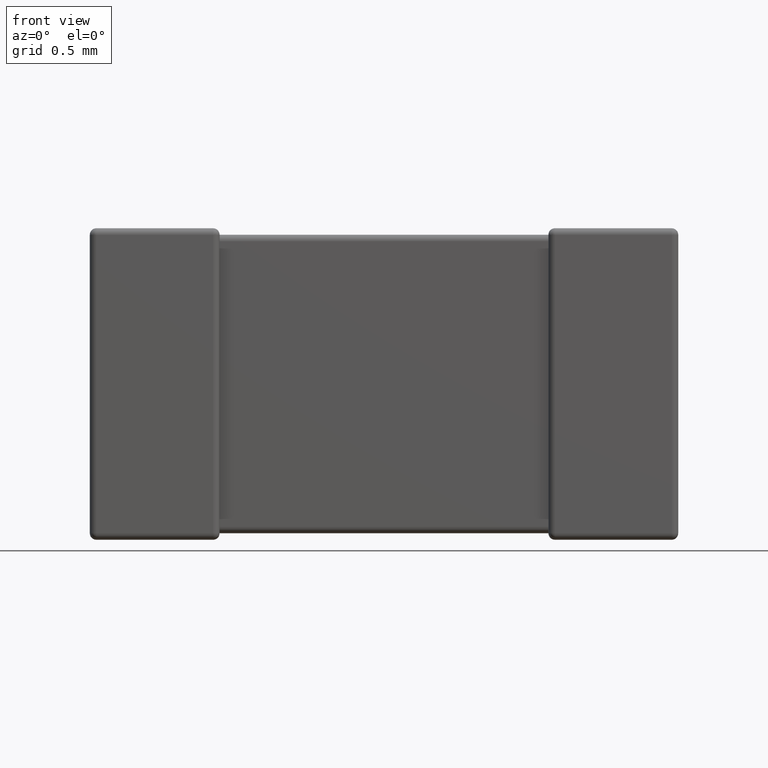
[diagram: clean part render]
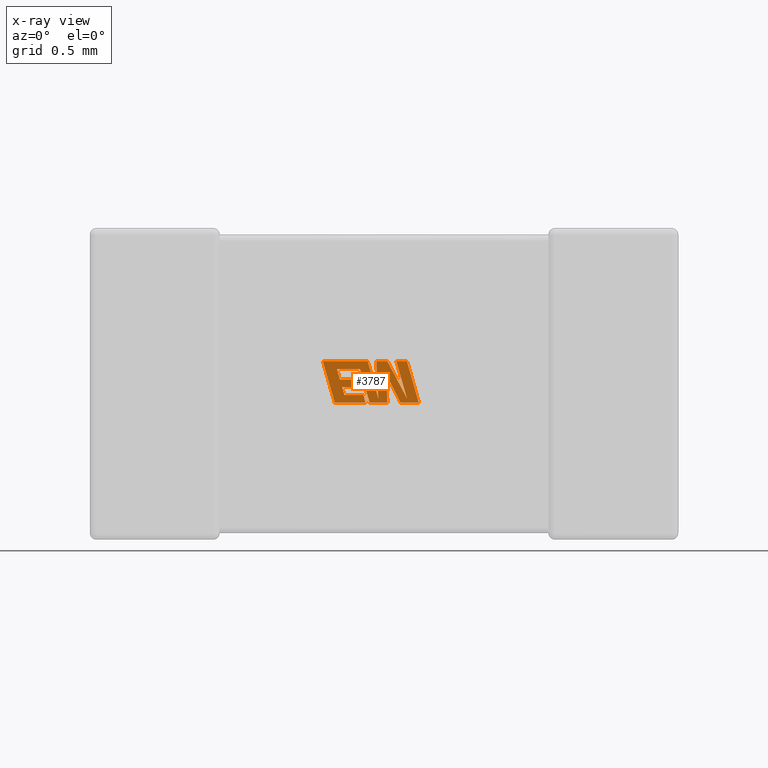
[diagram: x-ray — body ghosted, one internal face saturated and labeled with its STEP entity id]
A machine part, front view, then the same camera in x-ray: the body is ghosted and one INTERNAL B-rep face — a face not visible from any outside direction — is saturated and labeled: STEP entity #3787.
In plain terms, the highlighted planar face has unit normal (0, -1, 0).
Its self-contained STEP definition (entity closure, byte-faithful):
#6 = ORIENTED_EDGE ( 'NONE', *, *, #3652, .F. ) ;
#14 = VECTOR ( 'NONE', #3477, 1000.000000000000000 ) ;
#36 = CARTESIAN_POINT ( 'NONE',  ( 1.415592680271959600, 1.712560000000000100, -1.009387468605939600 ) ) ;
#63 = VECTOR ( 'NONE', #754, 1000.000000000000000 ) ;
#86 = AXIS2_PLACEMENT_3D ( 'NONE', #2228, #2212, #1523 ) ;
#127 = LINE ( 'NONE', #194, #1385 ) ;
#128 = LINE ( 'NONE', #1178, #3002 ) ;
#167 = ORIENTED_EDGE ( 'NONE', *, *, #3449, .F. ) ;
#194 = CARTESIAN_POINT ( 'NONE',  ( 1.795811030974151700, 1.712560000000000100, -1.009387468605939600 ) ) ;
#205 = EDGE_CURVE ( 'NONE', #865, #1140, #242, .T. ) ;
#225 = VERTEX_POINT ( 'NONE', #528 ) ;
#231 = CARTESIAN_POINT ( 'NONE',  ( 1.346355536600579900, 1.712560000000000100, -0.7687799999999998000 ) ) ;
#242 = LINE ( 'NONE', #3790, #1818 ) ;
#277 = EDGE_CURVE ( 'NONE', #957, #2814, #2888, .T. ) ;
#301 = EDGE_CURVE ( 'NONE', #2156, #2018, #2404, .T. ) ;
#332 = DIRECTION ( 'NONE',  ( 0.05375259206908434400, 0.0000000000000000000, -0.9985542843760946100 ) ) ;
#400 = VECTOR ( 'NONE', #4208, 1000.000000000000000 ) ;
#401 = ORIENTED_EDGE ( 'NONE', *, *, #3007, .F. ) ;
#422 = ORIENTED_EDGE ( 'NONE', *, *, #301, .F. ) ;
#445 = ORIENTED_EDGE ( 'NONE', *, *, #2056, .F. ) ;
#446 = EDGE_CURVE ( 'NONE', #2018, #3948, #2467, .T. ) ;
#490 = ORIENTED_EDGE ( 'NONE', *, *, #4024, .F. ) ;
#524 = VERTEX_POINT ( 'NONE', #2975 ) ;
#528 = CARTESIAN_POINT ( 'NONE',  ( 1.795811030974151700, 1.712560000000000100, -1.009387468605939600 ) ) ;
#532 = CARTESIAN_POINT ( 'NONE',  ( 1.832830620914688700, 1.712560000000000100, -0.9840180498207706800 ) ) ;
#536 = CARTESIAN_POINT ( 'NONE',  ( 1.580337707463670000, 1.712560000000000100, -0.9635890723964083400 ) ) ;
#547 = CARTESIAN_POINT ( 'NONE',  ( 1.548258857652406600, 1.712560000000000100, -0.8743560540090878900 ) ) ;
#556 = LINE ( 'NONE', #2680, #1256 ) ;
#562 = DIRECTION ( 'NONE',  ( 0.2740217765953990600, 0.0000000000000000000, -0.9617234872620618000 ) ) ;
#593 = EDGE_CURVE ( 'NONE', #1004, #957, #911, .T. ) ;
#632 = VECTOR ( 'NONE', #2589, 1000.000000000000000 ) ;
#694 = LINE ( 'NONE', #4317, #2505 ) ;
#714 = CARTESIAN_POINT ( 'NONE',  ( 1.832830620914688700, 1.712560000000000100, -0.9840180498207706800 ) ) ;
#754 = DIRECTION ( 'NONE',  ( -0.2765379750249969400, 0.0000000000000000000, 0.9610029908221275900 ) ) ;
#759 = CARTESIAN_POINT ( 'NONE',  ( 1.561342650527708600, 1.712560000000000100, -0.8145557168552942700 ) ) ;
#765 = EDGE_CURVE ( 'NONE', #4582, #865, #973, .T. ) ;
#804 = VECTOR ( 'NONE', #2240, 1000.000000000000000 ) ;
#821 = CARTESIAN_POINT ( 'NONE',  ( 1.445001950557935200, 1.712560000000000100, -0.8743560540090878900 ) ) ;
#830 = ORIENTED_EDGE ( 'NONE', *, *, #4404, .F. ) ;
#865 = VERTEX_POINT ( 'NONE', #1045 ) ;
#911 = LINE ( 'NONE', #714, #4644 ) ;
#920 = DIRECTION ( 'NONE',  ( 0.2746459304917039400, 0.0000000000000000000, -0.9615454294334439000 ) ) ;
#923 = LINE ( 'NONE', #2254, #804 ) ;
#955 = CARTESIAN_POINT ( 'NONE',  ( 1.470714486032121500, 1.712560000000000100, -0.9635890723964083400 ) ) ;
#957 = VERTEX_POINT ( 'NONE', #4344 ) ;
#973 = LINE ( 'NONE', #759, #632 ) ;
#1004 = VERTEX_POINT ( 'NONE', #532 ) ;
#1045 = CARTESIAN_POINT ( 'NONE',  ( 1.427963170861977800, 1.712560000000000100, -0.8145557168552942700 ) ) ;
#1047 = FACE_OUTER_BOUND ( 'NONE', #4485, .T. ) ;
#1059 = DIRECTION ( 'NONE',  ( -0.2760118818968593800, 0.0000000000000000000, 0.9611542233438680200 ) ) ;
#1106 = CARTESIAN_POINT ( 'NONE',  ( 1.457692146891389900, 1.712560000000000100, -0.9188361212786329000 ) ) ;
#1117 = DIRECTION ( 'NONE',  ( 0.2793947940878429000, 0.0000000000000000000, -0.9601763114327556100 ) ) ;
#1140 = VERTEX_POINT ( 'NONE', #821 ) ;
#1159 = VECTOR ( 'NONE', #3590, 1000.000000000000000 ) ;
#1166 = ORIENTED_EDGE ( 'NONE', *, *, #446, .F. ) ;
#1178 = CARTESIAN_POINT ( 'NONE',  ( 1.719205590769775200, 1.712560000000000100, -0.7687799999999998000 ) ) ;
#1188 = VERTEX_POINT ( 'NONE', #3719 ) ;
#1227 = DIRECTION ( 'NONE',  ( 1.000000000000000000, 0.0000000000000000000, -2.459231407381525800E-015 ) ) ;
#1250 = CARTESIAN_POINT ( 'NONE',  ( 1.832163408931786400, 1.712560000000000100, -0.7687799999999998000 ) ) ;
#1256 = VECTOR ( 'NONE', #2655, 1000.000000000000000 ) ;
#1346 = CARTESIAN_POINT ( 'NONE',  ( 1.719205590769775200, 1.712560000000000100, -0.7687799999999998000 ) ) ;
#1365 = ORIENTED_EDGE ( 'NONE', *, *, #2293, .F. ) ;
#1379 = LINE ( 'NONE', #3835, #14 ) ;
#1382 = CARTESIAN_POINT ( 'NONE',  ( 1.561342650527708600, 1.712560000000000100, -0.8145557168552942700 ) ) ;
#1385 = VECTOR ( 'NONE', #3444, 1000.000000000000000 ) ;
#1410 = ORIENTED_EDGE ( 'NONE', *, *, #2436, .F. ) ;
#1451 = CARTESIAN_POINT ( 'NONE',  ( 1.617344561569602300, 1.712560000000000100, -1.009387468605939600 ) ) ;
#1465 = CARTESIAN_POINT ( 'NONE',  ( 1.710557694836945000, 1.712560000000000100, -0.8374944016071778100 ) ) ;
#1478 = VERTEX_POINT ( 'NONE', #231 ) ;
#1510 = CARTESIAN_POINT ( 'NONE',  ( 1.832163408931786400, 1.712560000000000100, -0.7687799999999998000 ) ) ;
#1523 = DIRECTION ( 'NONE',  ( 0.0000000000000000000, 0.0000000000000000000, -1.000000000000000000 ) ) ;
#1566 = ORIENTED_EDGE ( 'NONE', *, *, #765, .F. ) ;
#1640 = CARTESIAN_POINT ( 'NONE',  ( 1.548258857652406600, 1.712560000000000100, -0.8743560540090878900 ) ) ;
#1641 = VECTOR ( 'NONE', #4542, 1000.000000000000000 ) ;
#1672 = EDGE_CURVE ( 'NONE', #524, #1188, #2095, .T. ) ;
#1696 = VERTEX_POINT ( 'NONE', #1640 ) ;
#1741 = ORIENTED_EDGE ( 'NONE', *, *, #277, .F. ) ;
#1752 = VECTOR ( 'NONE', #2186, 1000.000000000000100 ) ;
#1807 = DIRECTION ( 'NONE',  ( -1.000000000000000000, 0.0000000000000000000, 0.0000000000000000000 ) ) ;
#1818 = VECTOR ( 'NONE', #562, 1000.000000000000200 ) ;
#1847 = ORIENTED_EDGE ( 'NONE', *, *, #3158, .F. ) ;
#1850 = PLANE ( 'NONE',  #86 ) ;
#1859 = ORIENTED_EDGE ( 'NONE', *, *, #205, .F. ) ;
#1909 = ORIENTED_EDGE ( 'NONE', *, *, #593, .F. ) ;
#1982 = EDGE_CURVE ( 'NONE', #4053, #225, #923, .T. ) ;
#2018 = VERTEX_POINT ( 'NONE', #4005 ) ;
#2032 = LINE ( 'NONE', #2923, #4346 ) ;
#2056 = EDGE_CURVE ( 'NONE', #1696, #3361, #3978, .T. ) ;
#2079 = CARTESIAN_POINT ( 'NONE',  ( 1.667068680722454400, 1.712560000000000100, -0.9829865049792332300 ) ) ;
#2080 = ORIENTED_EDGE ( 'NONE', *, *, #3188, .F. ) ;
#2095 = LINE ( 'NONE', #2372, #1641 ) ;
#2101 = VECTOR ( 'NONE', #3886, 1000.000000000000000 ) ;
#2156 = VERTEX_POINT ( 'NONE', #1465 ) ;
#2186 = DIRECTION ( 'NONE',  ( -0.2762517575166416100, 0.0000000000000000000, 0.9610853065513833600 ) ) ;
#2189 = CARTESIAN_POINT ( 'NONE',  ( 1.605563734006848300, 1.712560000000000100, -0.7687799999999998000 ) ) ;
#2195 = EDGE_CURVE ( 'NONE', #3386, #2910, #4035, .T. ) ;
#2202 = VECTOR ( 'NONE', #1227, 1000.000000000000000 ) ;
#2212 = DIRECTION ( 'NONE',  ( 0.0000000000000000000, -1.000000000000000000, 0.0000000000000000000 ) ) ;
#2228 = CARTESIAN_POINT ( 'NONE',  ( -0.0002255481140237512700, 1.712559999999999600, 0.04035665622677719900 ) ) ;
#2240 = DIRECTION ( 'NONE',  ( -1.000000000000000000, 0.0000000000000000000, 0.0000000000000000000 ) ) ;
#2254 = CARTESIAN_POINT ( 'NONE',  ( 1.901339830266764100, 1.712560000000000100, -1.009387468605939600 ) ) ;
#2293 = EDGE_CURVE ( 'NONE', #2530, #1004, #128, .T. ) ;
#2297 = CARTESIAN_POINT ( 'NONE',  ( 1.655061791398066500, 1.712560000000000100, -0.7687799999999998000 ) ) ;
#2309 = DIRECTION ( 'NONE',  ( 0.4668459304955247000, 0.0000000000000000000, -0.8843386665637592600 ) ) ;
#2353 = CARTESIAN_POINT ( 'NONE',  ( 1.470714486032121500, 1.712560000000000100, -0.9635890723964083400 ) ) ;
#2372 = CARTESIAN_POINT ( 'NONE',  ( 1.593345414762693800, 1.712560000000000100, -1.009387468605939600 ) ) ;
#2383 = LINE ( 'NONE', #1451, #1752 ) ;
#2404 = LINE ( 'NONE', #2834, #3691 ) ;
#2436 = EDGE_CURVE ( 'NONE', #4207, #4292, #2559, .T. ) ;
#2467 = LINE ( 'NONE', #4648, #1159 ) ;
#2496 = LINE ( 'NONE', #36, #63 ) ;
#2505 = VECTOR ( 'NONE', #3589, 1000.000000000000000 ) ;
#2530 = VERTEX_POINT ( 'NONE', #1346 ) ;
#2546 = LINE ( 'NONE', #955, #400 ) ;
#2559 = LINE ( 'NONE', #3442, #3523 ) ;
#2578 = ORIENTED_EDGE ( 'NONE', *, *, #1982, .F. ) ;
#2589 = DIRECTION ( 'NONE',  ( -1.000000000000000000, 0.0000000000000000000, 0.0000000000000000000 ) ) ;
#2640 = ORIENTED_EDGE ( 'NONE', *, *, #2195, .F. ) ;
#2644 = LINE ( 'NONE', #3755, #2202 ) ;
#2655 = DIRECTION ( 'NONE',  ( 1.000000000000000000, 0.0000000000000000000, 0.0000000000000000000 ) ) ;
#2680 = CARTESIAN_POINT ( 'NONE',  ( 1.445001950557935200, 1.712560000000000100, -0.8743560540090878900 ) ) ;
#2740 = DIRECTION ( 'NONE',  ( 0.2759782365590801600, 0.0000000000000000000, -0.9611638845408936300 ) ) ;
#2751 = CARTESIAN_POINT ( 'NONE',  ( 1.901339830266764100, 1.712560000000000100, -1.009387468605939600 ) ) ;
#2765 = EDGE_CURVE ( 'NONE', #1188, #1478, #2496, .T. ) ;
#2814 = VERTEX_POINT ( 'NONE', #1250 ) ;
#2818 = CARTESIAN_POINT ( 'NONE',  ( 1.771021331891165400, 1.712560000000000100, -0.7687799999999998000 ) ) ;
#2834 = CARTESIAN_POINT ( 'NONE',  ( 1.710557694836945000, 1.712560000000000100, -0.8374944016071778100 ) ) ;
#2888 = LINE ( 'NONE', #2818, #2101 ) ;
#2910 = VERTEX_POINT ( 'NONE', #2353 ) ;
#2923 = CARTESIAN_POINT ( 'NONE',  ( 1.560963685827582800, 1.712560000000000100, -0.9188361212786329000 ) ) ;
#2929 = ORIENTED_EDGE ( 'NONE', *, *, #3061, .F. ) ;
#2975 = CARTESIAN_POINT ( 'NONE',  ( 1.593345414762693800, 1.712560000000000100, -1.009387468605939600 ) ) ;
#3002 = VECTOR ( 'NONE', #2309, 1000.000000000000000 ) ;
#3006 = VECTOR ( 'NONE', #920, 1000.000000000000100 ) ;
#3007 = EDGE_CURVE ( 'NONE', #4292, #3329, #3391, .T. ) ;
#3061 = EDGE_CURVE ( 'NONE', #2910, #4481, #2546, .T. ) ;
#3127 = DIRECTION ( 'NONE',  ( -0.05596501978068185000, 0.0000000000000000000, 0.9984327301130245800 ) ) ;
#3158 = EDGE_CURVE ( 'NONE', #3361, #3386, #2032, .T. ) ;
#3165 = EDGE_CURVE ( 'NONE', #3948, #4582, #2383, .T. ) ;
#3188 = EDGE_CURVE ( 'NONE', #2814, #4053, #3672, .T. ) ;
#3329 = VERTEX_POINT ( 'NONE', #2297 ) ;
#3361 = VERTEX_POINT ( 'NONE', #3729 ) ;
#3386 = VERTEX_POINT ( 'NONE', #4535 ) ;
#3391 = LINE ( 'NONE', #2079, #3855 ) ;
#3442 = CARTESIAN_POINT ( 'NONE',  ( 1.605563734006848300, 1.712560000000000100, -0.7687799999999998000 ) ) ;
#3444 = DIRECTION ( 'NONE',  ( -0.4443210308329503800, 0.0000000000000000000, 0.8958676361826809500 ) ) ;
#3449 = EDGE_CURVE ( 'NONE', #225, #2156, #127, .T. ) ;
#3477 = DIRECTION ( 'NONE',  ( 0.2732148821746424000, 0.0000000000000000000, -0.9619530280415443700 ) ) ;
#3523 = VECTOR ( 'NONE', #2740, 1000.000000000000100 ) ;
#3589 = DIRECTION ( 'NONE',  ( 1.000000000000000000, 0.0000000000000000000, 0.0000000000000000000 ) ) ;
#3590 = DIRECTION ( 'NONE',  ( -1.000000000000000000, 0.0000000000000000000, 0.0000000000000000000 ) ) ;
#3641 = ORIENTED_EDGE ( 'NONE', *, *, #2765, .F. ) ;
#3652 = EDGE_CURVE ( 'NONE', #3329, #2530, #694, .T. ) ;
#3655 = DIRECTION ( 'NONE',  ( 0.2763139702539146300, 0.0000000000000000000, -0.9610674221107063900 ) ) ;
#3672 = LINE ( 'NONE', #1510, #4517 ) ;
#3691 = VECTOR ( 'NONE', #332, 1000.000000000000200 ) ;
#3719 = CARTESIAN_POINT ( 'NONE',  ( 1.415592680271959600, 1.712560000000000100, -1.009387468605939600 ) ) ;
#3729 = CARTESIAN_POINT ( 'NONE',  ( 1.560963685827582800, 1.712560000000000100, -0.9188361212786329000 ) ) ;
#3755 = CARTESIAN_POINT ( 'NONE',  ( 1.562736333260703600, 1.712560000000000100, -0.7687799999999998000 ) ) ;
#3774 = ORIENTED_EDGE ( 'NONE', *, *, #3165, .F. ) ;
#3787 = ADVANCED_FACE ( 'NONE', ( #1047 ), #1850, .T. ) ;
#3790 = CARTESIAN_POINT ( 'NONE',  ( 1.427963170861977800, 1.712560000000000100, -0.8145557168552942700 ) ) ;
#3835 = CARTESIAN_POINT ( 'NONE',  ( 1.580337707463670000, 1.712560000000000100, -0.9635890723964083400 ) ) ;
#3855 = VECTOR ( 'NONE', #3127, 1000.000000000000100 ) ;
#3856 = CARTESIAN_POINT ( 'NONE',  ( 1.617344561569602300, 1.712560000000000100, -1.009387468605939600 ) ) ;
#3886 = DIRECTION ( 'NONE',  ( 1.000000000000000000, 0.0000000000000000000, 0.0000000000000000000 ) ) ;
#3948 = VERTEX_POINT ( 'NONE', #3856 ) ;
#3978 = LINE ( 'NONE', #547, #3006 ) ;
#4005 = CARTESIAN_POINT ( 'NONE',  ( 1.719810770062255800, 1.712560000000000100, -1.009387468605939600 ) ) ;
#4024 = EDGE_CURVE ( 'NONE', #4481, #524, #1379, .T. ) ;
#4035 = LINE ( 'NONE', #1106, #4479 ) ;
#4041 = ORIENTED_EDGE ( 'NONE', *, *, #1672, .F. ) ;
#4053 = VERTEX_POINT ( 'NONE', #2751 ) ;
#4096 = CARTESIAN_POINT ( 'NONE',  ( 1.667068680722454400, 1.712560000000000100, -0.9829865049792332300 ) ) ;
#4207 = VERTEX_POINT ( 'NONE', #2189 ) ;
#4208 = DIRECTION ( 'NONE',  ( 1.000000000000000000, 0.0000000000000000000, 0.0000000000000000000 ) ) ;
#4292 = VERTEX_POINT ( 'NONE', #4096 ) ;
#4317 = CARTESIAN_POINT ( 'NONE',  ( 1.655061791398066500, 1.712560000000000100, -0.7687799999999998000 ) ) ;
#4323 = EDGE_CURVE ( 'NONE', #1140, #1696, #556, .T. ) ;
#4344 = CARTESIAN_POINT ( 'NONE',  ( 1.771021331891165400, 1.712560000000000100, -0.7687799999999998000 ) ) ;
#4346 = VECTOR ( 'NONE', #1807, 1000.000000000000000 ) ;
#4404 = EDGE_CURVE ( 'NONE', #1478, #4207, #2644, .T. ) ;
#4479 = VECTOR ( 'NONE', #1117, 999.9999999999998900 ) ;
#4481 = VERTEX_POINT ( 'NONE', #536 ) ;
#4485 = EDGE_LOOP ( 'NONE', ( #2578, #2080, #1741, #1909, #1365, #6, #401, #1410, #830, #3641, #4041, #490, #2929, #2640, #1847, #445, #4573, #1859, #1566, #3774, #1166, #422, #167 ) ) ;
#4517 = VECTOR ( 'NONE', #3655, 1000.000000000000200 ) ;
#4535 = CARTESIAN_POINT ( 'NONE',  ( 1.457692146891389900, 1.712560000000000100, -0.9188361212786329000 ) ) ;
#4542 = DIRECTION ( 'NONE',  ( -1.000000000000000000, 0.0000000000000000000, 0.0000000000000000000 ) ) ;
#4573 = ORIENTED_EDGE ( 'NONE', *, *, #4323, .F. ) ;
#4582 = VERTEX_POINT ( 'NONE', #1382 ) ;
#4644 = VECTOR ( 'NONE', #1059, 1000.000000000000100 ) ;
#4648 = CARTESIAN_POINT ( 'NONE',  ( 1.719810770062255800, 1.712560000000000100, -1.009387468605939600 ) ) ;